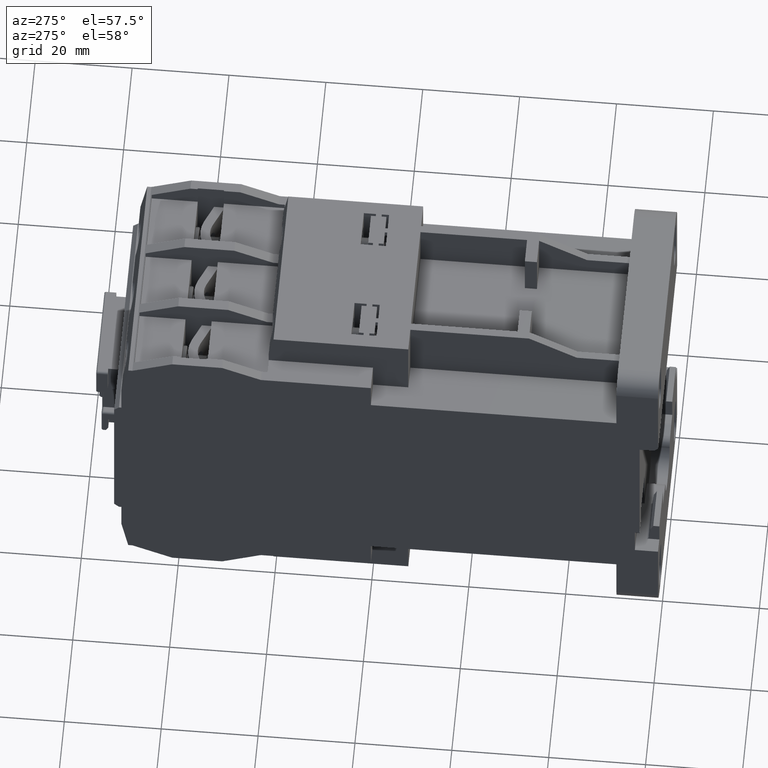
[diagram: clean part render]
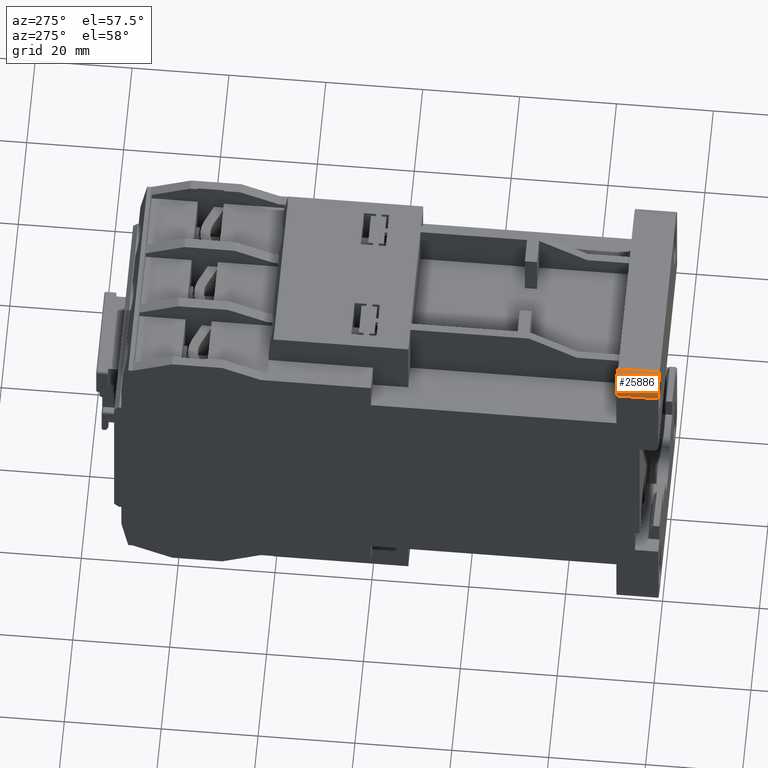
[diagram: same view with one face highlighted and labeled with its STEP entity id]
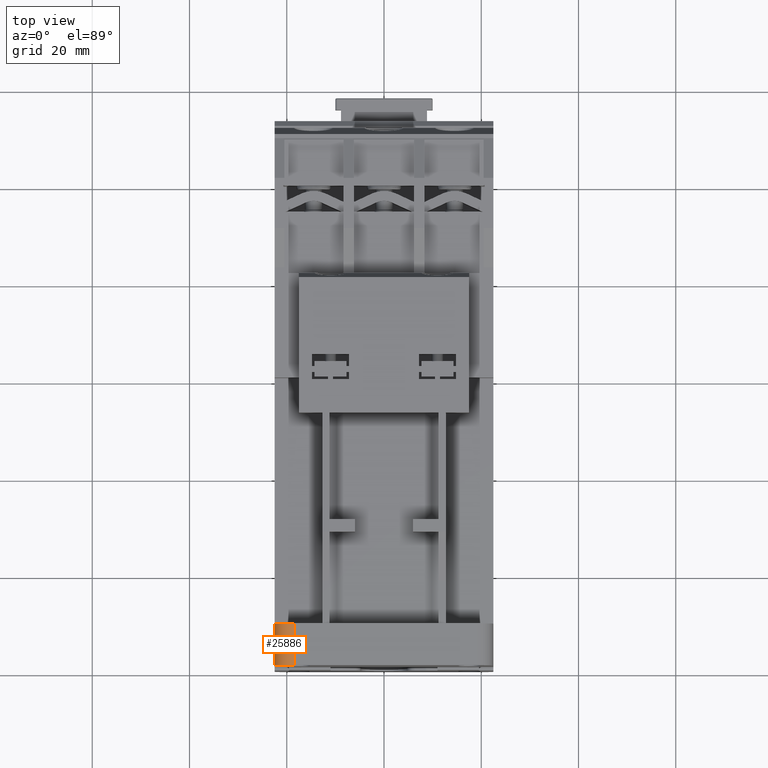
[diagram: same view with one face highlighted and labeled with its STEP entity id]
A machine part, auxiliary view. The second image highlights one B-rep face of the part: STEP entity #25886.
A second angle (top view) of the same face is appended — the face is thin or edge-on in the first view.
In plain terms, the highlighted cylindrical surface (edge-blend (fillet) strip) has radius 4 mm, axis along (0, 1, 0).
Its self-contained STEP definition (entity closure, byte-faithful):
#815 = VERTEX_POINT ( 'NONE', #18560 ) ;
#970 = EDGE_LOOP ( 'NONE', ( #31933, #3057, #18869, #31526 ) ) ;
#3057 = ORIENTED_EDGE ( 'NONE', *, *, #23082, .F. ) ;
#3161 = EDGE_CURVE ( 'NONE', #3960, #26114, #27865, .T. ) ;
#3327 = DIRECTION ( 'NONE',  ( 0.000000000000000000, 1.000000000000000000, 0.000000000000000000 ) ) ;
#3960 = VERTEX_POINT ( 'NONE', #13179 ) ;
#4543 = LINE ( 'NONE', #17583, #24533 ) ;
#5460 = DIRECTION ( 'NONE',  ( 0.000000000000000000, 0.000000000000000000, 1.000000000000000000 ) ) ;
#6031 = DIRECTION ( 'NONE',  ( 0.000000000000000000, 0.000000000000000000, 1.000000000000000000 ) ) ;
#6175 = CARTESIAN_POINT ( 'NONE',  ( -0.7283464566929134243, -3.122047244094487972, 1.633858267716535639 ) ) ;
#6391 = FACE_OUTER_BOUND ( 'NONE', #970, .T. ) ;
#8172 = DIRECTION ( 'NONE',  ( 0.000000000000000000, 1.000000000000000000, 0.000000000000000000 ) ) ;
#9126 = CYLINDRICAL_SURFACE ( 'NONE', #33084, 0.1574803149606297803 ) ;
#9170 = EDGE_CURVE ( 'NONE', #815, #20676, #32769, .T. ) ;
#9801 = CARTESIAN_POINT ( 'NONE',  ( -0.7283464566929134243, -3.122047244094487972, 1.476377952755905554 ) ) ;
#11260 = CARTESIAN_POINT ( 'NONE',  ( -0.7283464566929134243, -2.783464566929133799, 1.476377952755905554 ) ) ;
#11758 = AXIS2_PLACEMENT_3D ( 'NONE', #11260, #8172, #5460 ) ;
#13179 = CARTESIAN_POINT ( 'NONE',  ( -0.8858267716535432879, -2.783464566929133799, 1.476377952755905554 ) ) ;
#14314 = DIRECTION ( 'NONE',  ( 0.000000000000000000, -1.000000000000000000, 0.000000000000000000 ) ) ;
#16827 = EDGE_CURVE ( 'NONE', #26114, #815, #31259, .T. ) ;
#17583 = CARTESIAN_POINT ( 'NONE',  ( -0.8858267716535432879, -2.783464566929133799, 1.476377952755905554 ) ) ;
#18560 = CARTESIAN_POINT ( 'NONE',  ( -0.7283464566929134243, -3.122047244094487972, 1.633858267716535639 ) ) ;
#18869 = ORIENTED_EDGE ( 'NONE', *, *, #9170, .F. ) ;
#19550 = CARTESIAN_POINT ( 'NONE',  ( -0.7283464566929134243, -2.783464566929133799, 1.633858267716535639 ) ) ;
#20676 = VERTEX_POINT ( 'NONE', #29815 ) ;
#20807 = DIRECTION ( 'NONE',  ( 0.000000000000000000, -1.000000000000000000, 0.000000000000000000 ) ) ;
#23014 = CARTESIAN_POINT ( 'NONE',  ( -0.7283464566929134243, -2.783464566929133799, 1.476377952755905554 ) ) ;
#23082 = EDGE_CURVE ( 'NONE', #20676, #3960, #4543, .T. ) ;
#24533 = VECTOR ( 'NONE', #31291, 39.37007874015748143 ) ;
#25886 = ADVANCED_FACE ( 'NONE', ( #6391 ), #9126, .T. ) ;
#26114 = VERTEX_POINT ( 'NONE', #19550 ) ;
#26310 = VECTOR ( 'NONE', #14314, 39.37007874015748143 ) ;
#26400 = DIRECTION ( 'NONE',  ( 0.000000000000000000, 0.000000000000000000, -1.000000000000000000 ) ) ;
#27865 = CIRCLE ( 'NONE', #11758, 0.1574803149606297803 ) ;
#29815 = CARTESIAN_POINT ( 'NONE',  ( -0.8858267716535432879, -3.122047244094487972, 1.476377952755905554 ) ) ;
#31259 = LINE ( 'NONE', #6175, #26310 ) ;
#31291 = DIRECTION ( 'NONE',  ( 0.000000000000000000, 1.000000000000000000, 0.000000000000000000 ) ) ;
#31526 = ORIENTED_EDGE ( 'NONE', *, *, #16827, .F. ) ;
#31933 = ORIENTED_EDGE ( 'NONE', *, *, #3161, .F. ) ;
#32205 = AXIS2_PLACEMENT_3D ( 'NONE', #9801, #20807, #26400 ) ;
#32769 = CIRCLE ( 'NONE', #32205, 0.1574803149606297803 ) ;
#33084 = AXIS2_PLACEMENT_3D ( 'NONE', #23014, #3327, #6031 ) ;